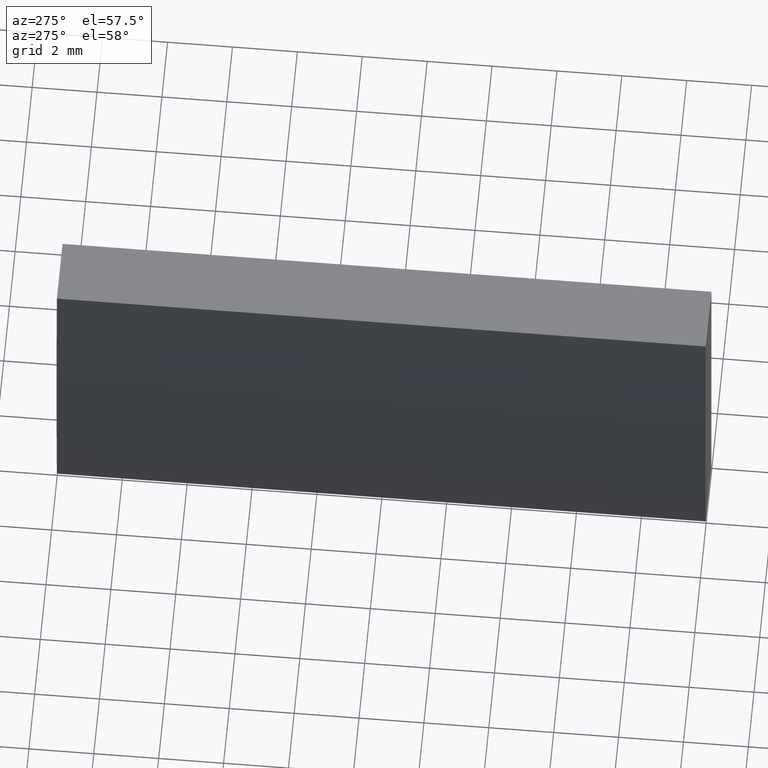
[diagram: clean part render]
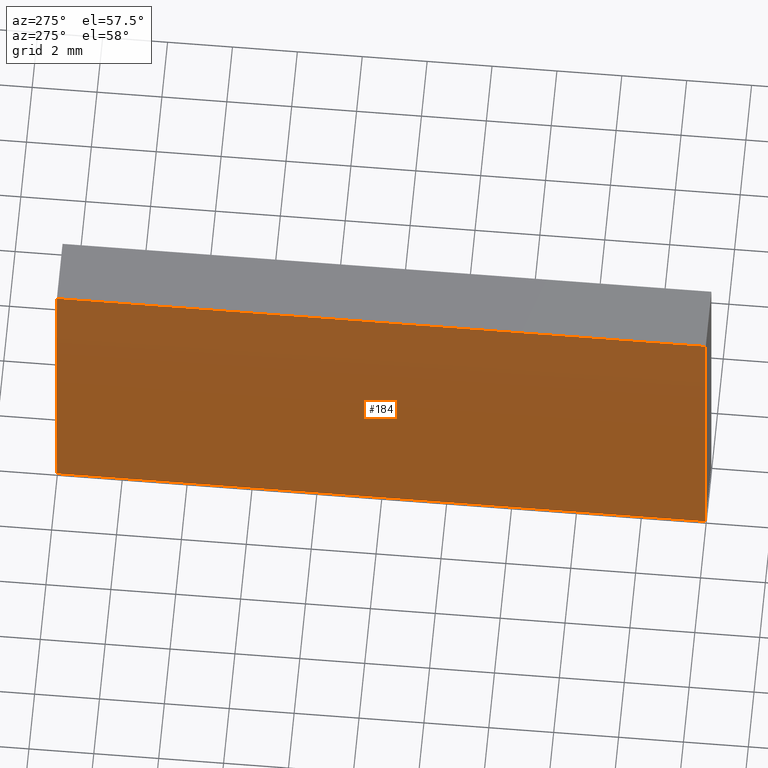
[diagram: same view with one face highlighted and labeled with its STEP entity id]
A machine part, auxiliary view. The second image highlights one B-rep face of the part: STEP entity #184.
In plain terms, the highlighted cylindrical surface (partial cylindrical patch) has radius 114.62 mm, axis along (-0, -1, -0).
Its self-contained STEP definition (entity closure, byte-faithful):
#15 = DIRECTION ( 'NONE',  ( -0.0000000000000000000, -1.000000000000000000, -0.0000000000000000000 ) ) ;
#16 = VERTEX_POINT ( 'NONE', #28 ) ;
#27 = AXIS2_PLACEMENT_3D ( 'NONE', #40, #190, #68 ) ;
#28 = CARTESIAN_POINT ( 'NONE',  ( -110.1556877235027200, 0.0000000000000000000, -5.000000000000000000 ) ) ;
#40 = CARTESIAN_POINT ( 'NONE',  ( 4.355204334851265500, 0.0000000000000000000, 4.286263797015675000E-017 ) ) ;
#41 = CARTESIAN_POINT ( 'NONE',  ( -110.1556877235027200, 20.00000000000000000, 5.000000000000000000 ) ) ;
#42 = CIRCLE ( 'NONE', #27, 114.6199999999999900 ) ;
#43 = EDGE_CURVE ( 'NONE', #181, #16, #140, .T. ) ;
#60 = EDGE_CURVE ( 'NONE', #16, #91, #42, .T. ) ;
#61 = DIRECTION ( 'NONE',  ( -0.0000000000000000000, -1.000000000000000000, -0.0000000000000000000 ) ) ;
#68 = DIRECTION ( 'NONE',  ( 0.0000000000000000000, 0.0000000000000000000, 1.000000000000000000 ) ) ;
#74 = ORIENTED_EDGE ( 'NONE', *, *, #112, .F. ) ;
#80 = DIRECTION ( 'NONE',  ( 0.0000000000000000000, 0.0000000000000000000, 1.000000000000000000 ) ) ;
#83 = CARTESIAN_POINT ( 'NONE',  ( -110.1556877235027200, 20.00000000000000000, -5.000000000000000000 ) ) ;
#86 = CARTESIAN_POINT ( 'NONE',  ( 4.355204334851265500, 20.00000000000000000, 4.286263797015675000E-017 ) ) ;
#87 = VERTEX_POINT ( 'NONE', #144 ) ;
#91 = VERTEX_POINT ( 'NONE', #132 ) ;
#92 = FACE_OUTER_BOUND ( 'NONE', #196, .T. ) ;
#99 = VECTOR ( 'NONE', #160, 1000.000000000000000 ) ;
#106 = CARTESIAN_POINT ( 'NONE',  ( 4.355204334851265500, 20.00000000000000000, 4.286263797015675000E-017 ) ) ;
#109 = VECTOR ( 'NONE', #15, 1000.000000000000000 ) ;
#112 = EDGE_CURVE ( 'NONE', #87, #91, #114, .T. ) ;
#114 = LINE ( 'NONE', #41, #99 ) ;
#132 = CARTESIAN_POINT ( 'NONE',  ( -110.1556877235027200, 0.0000000000000000000, 5.000000000000000000 ) ) ;
#136 = ORIENTED_EDGE ( 'NONE', *, *, #176, .F. ) ;
#138 = ORIENTED_EDGE ( 'NONE', *, *, #43, .T. ) ;
#140 = LINE ( 'NONE', #204, #109 ) ;
#143 = DIRECTION ( 'NONE',  ( 0.0000000000000000000, 0.0000000000000000000, -1.000000000000000000 ) ) ;
#144 = CARTESIAN_POINT ( 'NONE',  ( -110.1556877235027200, 20.00000000000000000, 5.000000000000000000 ) ) ;
#157 = AXIS2_PLACEMENT_3D ( 'NONE', #106, #199, #80 ) ;
#160 = DIRECTION ( 'NONE',  ( -0.0000000000000000000, -1.000000000000000000, -0.0000000000000000000 ) ) ;
#166 = ORIENTED_EDGE ( 'NONE', *, *, #60, .T. ) ;
#176 = EDGE_CURVE ( 'NONE', #181, #87, #182, .T. ) ;
#181 = VERTEX_POINT ( 'NONE', #83 ) ;
#182 = CIRCLE ( 'NONE', #157, 114.6199999999999900 ) ;
#183 = AXIS2_PLACEMENT_3D ( 'NONE', #86, #61, #143 ) ;
#184 = ADVANCED_FACE ( 'NONE', ( #92 ), #191, .T. ) ;
#190 = DIRECTION ( 'NONE',  ( 0.0000000000000000000, 1.000000000000000000, 0.0000000000000000000 ) ) ;
#191 = CYLINDRICAL_SURFACE ( 'NONE', #183, 114.6199999999999900 ) ;
#196 = EDGE_LOOP ( 'NONE', ( #166, #74, #136, #138 ) ) ;
#199 = DIRECTION ( 'NONE',  ( 0.0000000000000000000, 1.000000000000000000, 0.0000000000000000000 ) ) ;
#204 = CARTESIAN_POINT ( 'NONE',  ( -110.1556877235027200, 20.00000000000000000, -5.000000000000000000 ) ) ;